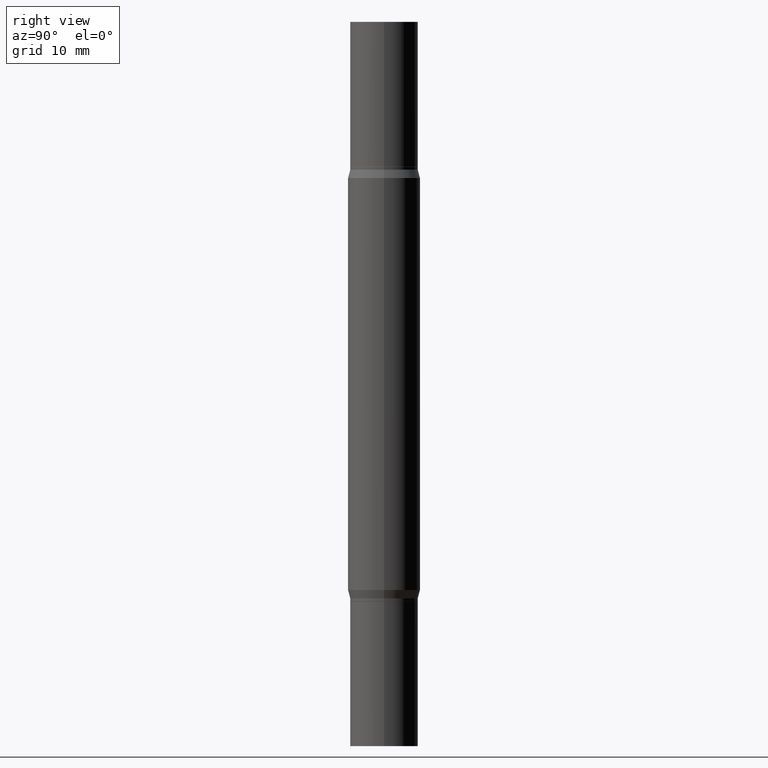
[diagram: clean part render]
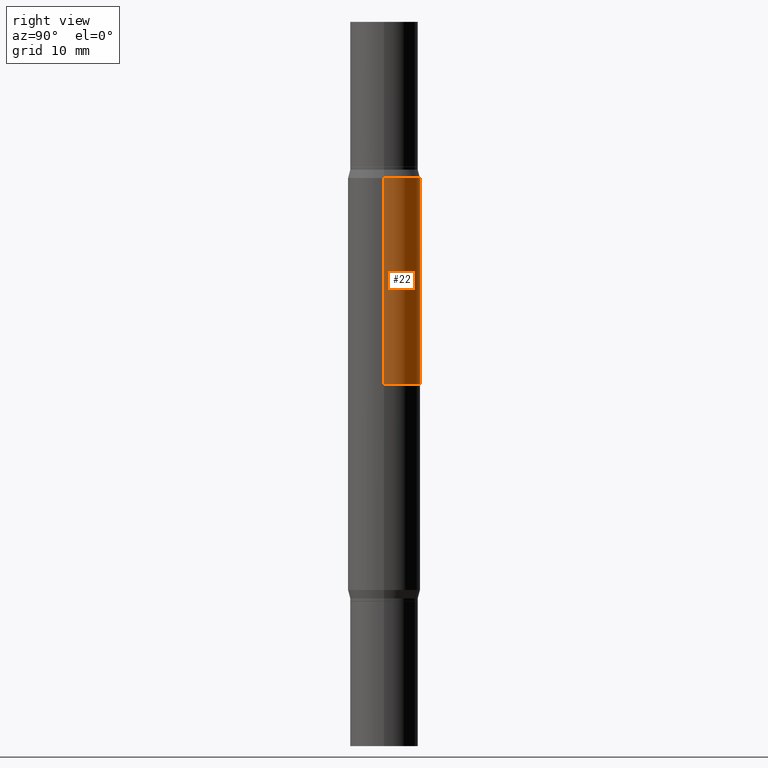
[diagram: same view with one face highlighted and labeled with its STEP entity id]
A machine part, right view. The second image highlights one B-rep face of the part: STEP entity #22.
In plain terms, the highlighted cylindrical surface (edge-blend (fillet) strip) has radius 3.175 mm, axis along (-0, -0, -1).
Its self-contained STEP definition (entity closure, byte-faithful):
#1 = CIRCLE ( 'NONE', #325, 0.1250000000000000000 ) ;
#7 = DIRECTION ( 'NONE',  ( 0.000000000000000000, 1.000000000000000000, -4.370956789862821150E-15 ) ) ;
#22 = ADVANCED_FACE ( 'NONE', ( #202 ), #66, .T. ) ;
#60 = DIRECTION ( 'NONE',  ( 1.000000000000000000, -6.982962677686262766E-15, 0.000000000000000000 ) ) ;
#66 = CYLINDRICAL_SURFACE ( 'NONE', #677, 0.1250000000000000000 ) ;
#72 = CARTESIAN_POINT ( 'NONE',  ( -0.1250000000000000000, -1.024500086952540162E-15, -0.5391099962990381078 ) ) ;
#81 = AXIS2_PLACEMENT_3D ( 'NONE', #576, #650, #7 ) ;
#111 = DIRECTION ( 'NONE',  ( 2.445468806185136597E-29, 3.491805094961124077E-15, 1.000000000000000000 ) ) ;
#140 = CARTESIAN_POINT ( 'NONE',  ( -0.1250000000000000000, -7.871545792533893657E-15, -2.499999999999999556 ) ) ;
#171 = CARTESIAN_POINT ( 'NONE',  ( 4.795295336410958635E-29, -1.882062336673981410E-15, -0.5391099962990381078 ) ) ;
#202 = FACE_OUTER_BOUND ( 'NONE', #832, .T. ) ;
#230 = LINE ( 'NONE', #533, #862 ) ;
#276 = VERTEX_POINT ( 'NONE', #300 ) ;
#286 = EDGE_CURVE ( 'NONE', #596, #418, #230, .T. ) ;
#300 = CARTESIAN_POINT ( 'NONE',  ( -0.1250000000000000000, -2.265644755392513326E-15, -1.249999999999999778 ) ) ;
#325 = AXIS2_PLACEMENT_3D ( 'NONE', #171, #111, #709 ) ;
#344 = VECTOR ( 'NONE', #366, 39.37007874015748143 ) ;
#351 = DIRECTION ( 'NONE',  ( -2.445468806185136597E-29, -3.491805094961124077E-15, -1.000000000000000000 ) ) ;
#366 = DIRECTION ( 'NONE',  ( -2.445468806185136877E-29, -3.491805094961123683E-15, -1.000000000000000000 ) ) ;
#418 = VERTEX_POINT ( 'NONE', #491 ) ;
#461 = EDGE_CURVE ( 'NONE', #596, #756, #1, .T. ) ;
#491 = CARTESIAN_POINT ( 'NONE',  ( 0.1250000000000000000, -3.996077339824737716E-15, -1.249999999999999778 ) ) ;
#506 = ORIENTED_EDGE ( 'NONE', *, *, #776, .F. ) ;
#520 = CARTESIAN_POINT ( 'NONE',  ( 0.000000000000000000, -8.729108042255335103E-15, -2.499999999999999556 ) ) ;
#533 = CARTESIAN_POINT ( 'NONE',  ( 0.1250000000000000000, -9.601978376966118441E-15, -2.499999999999999556 ) ) ;
#575 = CIRCLE ( 'NONE', #81, 0.1250000000000000000 ) ;
#576 = CARTESIAN_POINT ( 'NONE',  ( 3.056836007731420185E-29, -4.364351673553931682E-15, -1.249999999999999778 ) ) ;
#596 = VERTEX_POINT ( 'NONE', #886 ) ;
#627 = ORIENTED_EDGE ( 'NONE', *, *, #286, .T. ) ;
#650 = DIRECTION ( 'NONE',  ( -0.000000000000000000, -3.491643216902134830E-15, -1.000000000000000000 ) ) ;
#677 = AXIS2_PLACEMENT_3D ( 'NONE', #520, #351, #60 ) ;
#698 = ORIENTED_EDGE ( 'NONE', *, *, #700, .F. ) ;
#700 = EDGE_CURVE ( 'NONE', #276, #418, #575, .T. ) ;
#709 = DIRECTION ( 'NONE',  ( 1.000000000000000000, -6.982962677686266711E-15, 0.000000000000000000 ) ) ;
#741 = LINE ( 'NONE', #140, #344 ) ;
#756 = VERTEX_POINT ( 'NONE', #72 ) ;
#762 = DIRECTION ( 'NONE',  ( -2.445468806185136877E-29, -3.491805094961123683E-15, -1.000000000000000000 ) ) ;
#776 = EDGE_CURVE ( 'NONE', #756, #276, #741, .T. ) ;
#832 = EDGE_LOOP ( 'NONE', ( #506, #929, #627, #698 ) ) ;
#862 = VECTOR ( 'NONE', #762, 39.37007874015748143 ) ;
#886 = CARTESIAN_POINT ( 'NONE',  ( 0.1250000000000000000, -2.754932671384765144E-15, -0.5391099962990381078 ) ) ;
#929 = ORIENTED_EDGE ( 'NONE', *, *, #461, .F. ) ;